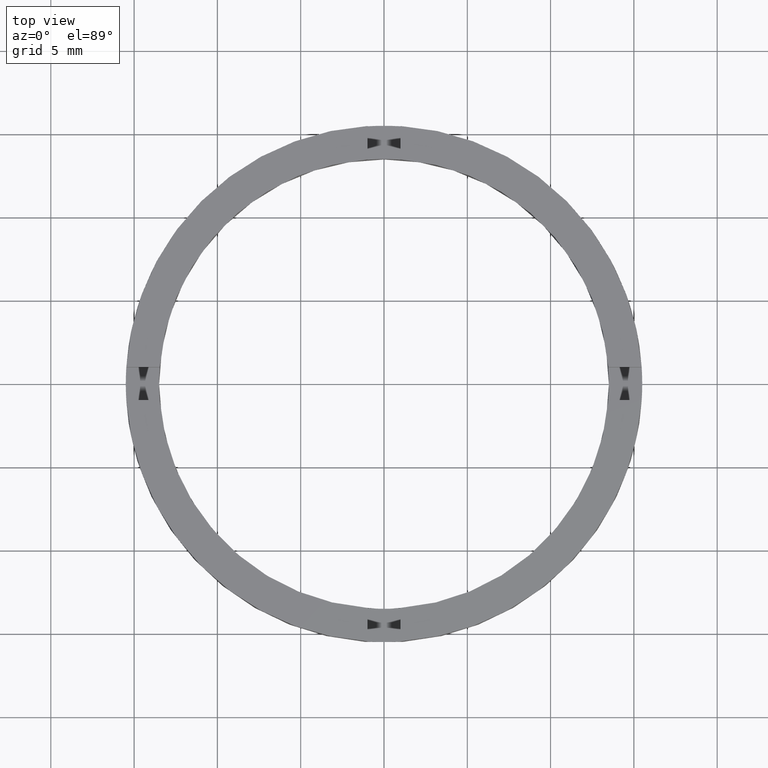
[diagram: clean part render]
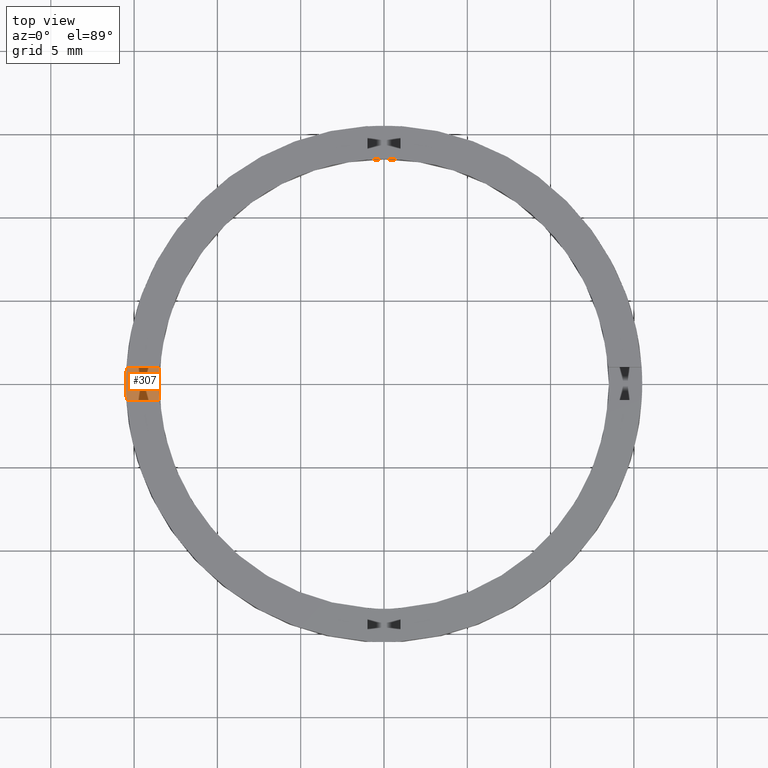
[diagram: same view with one face highlighted and labeled with its STEP entity id]
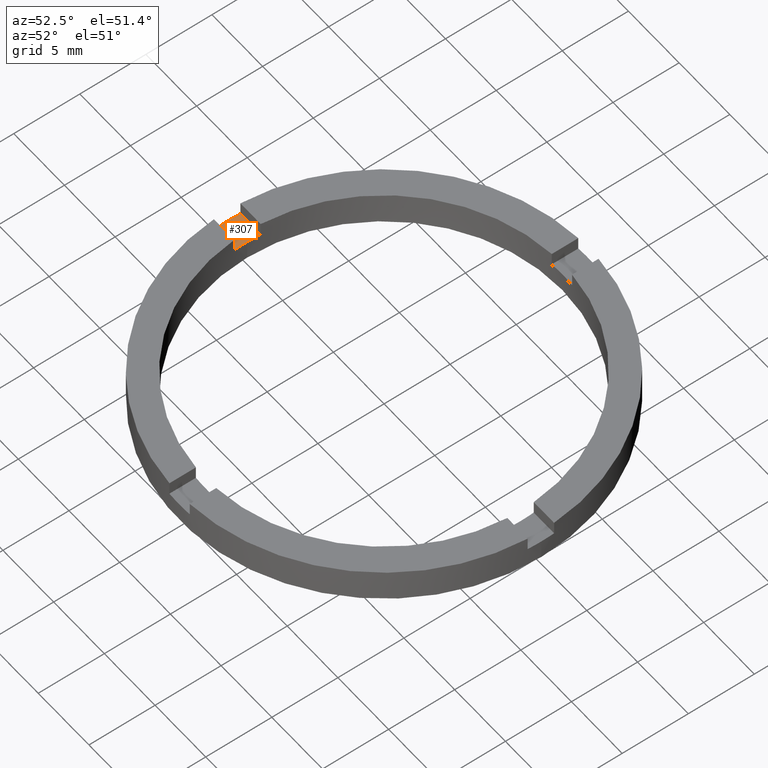
[diagram: same view with one face highlighted and labeled with its STEP entity id]
A machine part, top view. The second image highlights one B-rep face of the part: STEP entity #307.
A second angle (auxiliary view) of the same face is appended — the face is thin or edge-on in the first view.
In plain terms, the highlighted planar face has unit normal (0, 0, 1).
Its self-contained STEP definition (entity closure, byte-faithful):
#18 = DIRECTION ( 'NONE',  ( -1.000000000000000000, -1.734723475976807094E-16, 0.000000000000000000 ) ) ;
#20 = CARTESIAN_POINT ( 'NONE',  ( -15.46770829825802096, 0.9999999999999767963, 1.500000000000000000 ) ) ;
#29 = DIRECTION ( 'NONE',  ( 1.000000000000000000, 1.734723475976807094E-16, -0.000000000000000000 ) ) ;
#50 = EDGE_CURVE ( 'NONE', #144, #79, #639, .T. ) ;
#53 = CARTESIAN_POINT ( 'NONE',  ( -13.46291201783626157, 0.9999999999999770184, 1.500000000000000000 ) ) ;
#59 = DIRECTION ( 'NONE',  ( 0.000000000000000000, 0.000000000000000000, 1.000000000000000000 ) ) ;
#79 = VERTEX_POINT ( 'NONE', #173 ) ;
#81 = ORIENTED_EDGE ( 'NONE', *, *, #553, .F. ) ;
#84 = CARTESIAN_POINT ( 'NONE',  ( 0.000000000000000000, 0.000000000000000000, 1.500000000000000000 ) ) ;
#98 = VERTEX_POINT ( 'NONE', #343 ) ;
#99 = CARTESIAN_POINT ( 'NONE',  ( 0.000000000000000000, 0.000000000000000000, 1.500000000000000000 ) ) ;
#144 = VERTEX_POINT ( 'NONE', #53 ) ;
#149 = VECTOR ( 'NONE', #18, 1000.000000000000000 ) ;
#150 = ORIENTED_EDGE ( 'NONE', *, *, #50, .F. ) ;
#156 = ORIENTED_EDGE ( 'NONE', *, *, #709, .T. ) ;
#159 = ORIENTED_EDGE ( 'NONE', *, *, #570, .T. ) ;
#173 = CARTESIAN_POINT ( 'NONE',  ( -13.50000000000000000, 0.000000000000000000, 1.500000000000000000 ) ) ;
#198 = CIRCLE ( 'NONE', #240, 15.50000000000000000 ) ;
#240 = AXIS2_PLACEMENT_3D ( 'NONE', #674, #312, #752 ) ;
#249 = VECTOR ( 'NONE', #29, 1000.000000000000000 ) ;
#260 = EDGE_CURVE ( 'NONE', #605, #675, #500, .T. ) ;
#292 = EDGE_CURVE ( 'NONE', #631, #98, #502, .T. ) ;
#294 = DIRECTION ( 'NONE',  ( 1.000000000000000000, 0.000000000000000000, -0.000000000000000000 ) ) ;
#300 = CARTESIAN_POINT ( 'NONE',  ( -13.46291201783625802, -1.000000000000023093, 1.500000000000000000 ) ) ;
#301 = DIRECTION ( 'NONE',  ( 1.000000000000000000, 0.000000000000000000, 0.000000000000000000 ) ) ;
#307 = ADVANCED_FACE ( 'NONE', ( #511 ), #623, .T. ) ;
#308 = CARTESIAN_POINT ( 'NONE',  ( -15.46770829825801741, -1.000000000000023315, 1.500000000000000000 ) ) ;
#312 = DIRECTION ( 'NONE',  ( 0.000000000000000000, 0.000000000000000000, 1.000000000000000000 ) ) ;
#343 = CARTESIAN_POINT ( 'NONE',  ( -15.50000000000000000, 0.000000000000000000, 1.500000000000000000 ) ) ;
#345 = ORIENTED_EDGE ( 'NONE', *, *, #260, .T. ) ;
#412 = LINE ( 'NONE', #588, #149 ) ;
#424 = CARTESIAN_POINT ( 'NONE',  ( 0.000000000000000000, 0.000000000000000000, 1.500000000000000000 ) ) ;
#474 = DIRECTION ( 'NONE',  ( 1.000000000000000000, 0.000000000000000000, 0.000000000000000000 ) ) ;
#488 = AXIS2_PLACEMENT_3D ( 'NONE', #84, #640, #294 ) ;
#500 = LINE ( 'NONE', #525, #249 ) ;
#502 = CIRCLE ( 'NONE', #526, 15.50000000000000000 ) ;
#511 = FACE_OUTER_BOUND ( 'NONE', #591, .T. ) ;
#525 = CARTESIAN_POINT ( 'NONE',  ( -5.500000000000185629, -1.000000000000021538, 1.500000000000000000 ) ) ;
#526 = AXIS2_PLACEMENT_3D ( 'NONE', #99, #582, #301 ) ;
#553 = EDGE_CURVE ( 'NONE', #79, #675, #664, .T. ) ;
#570 = EDGE_CURVE ( 'NONE', #144, #631, #412, .T. ) ;
#577 = AXIS2_PLACEMENT_3D ( 'NONE', #424, #641, #731 ) ;
#582 = DIRECTION ( 'NONE',  ( 0.000000000000000000, 0.000000000000000000, 1.000000000000000000 ) ) ;
#588 = CARTESIAN_POINT ( 'NONE',  ( -5.500000000000185629, 0.9999999999999785727, 1.500000000000000000 ) ) ;
#591 = EDGE_LOOP ( 'NONE', ( #666, #156, #345, #81, #150, #159 ) ) ;
#605 = VERTEX_POINT ( 'NONE', #308 ) ;
#623 = PLANE ( 'NONE',  #488 ) ;
#631 = VERTEX_POINT ( 'NONE', #20 ) ;
#639 = CIRCLE ( 'NONE', #577, 13.50000000000000000 ) ;
#640 = DIRECTION ( 'NONE',  ( 0.000000000000000000, 0.000000000000000000, 1.000000000000000000 ) ) ;
#641 = DIRECTION ( 'NONE',  ( 0.000000000000000000, 0.000000000000000000, 1.000000000000000000 ) ) ;
#664 = CIRCLE ( 'NONE', #775, 13.50000000000000000 ) ;
#666 = ORIENTED_EDGE ( 'NONE', *, *, #292, .T. ) ;
#674 = CARTESIAN_POINT ( 'NONE',  ( 0.000000000000000000, 0.000000000000000000, 1.500000000000000000 ) ) ;
#675 = VERTEX_POINT ( 'NONE', #300 ) ;
#686 = CARTESIAN_POINT ( 'NONE',  ( 0.000000000000000000, 0.000000000000000000, 1.500000000000000000 ) ) ;
#709 = EDGE_CURVE ( 'NONE', #98, #605, #198, .T. ) ;
#731 = DIRECTION ( 'NONE',  ( 1.000000000000000000, 0.000000000000000000, 0.000000000000000000 ) ) ;
#752 = DIRECTION ( 'NONE',  ( 1.000000000000000000, 0.000000000000000000, 0.000000000000000000 ) ) ;
#775 = AXIS2_PLACEMENT_3D ( 'NONE', #686, #59, #474 ) ;